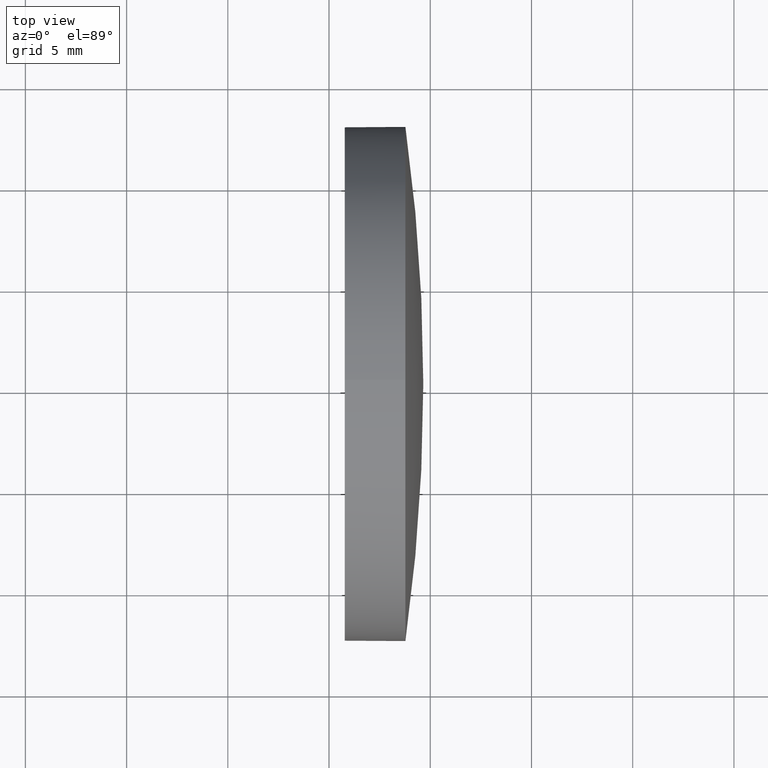
[diagram: clean part render]
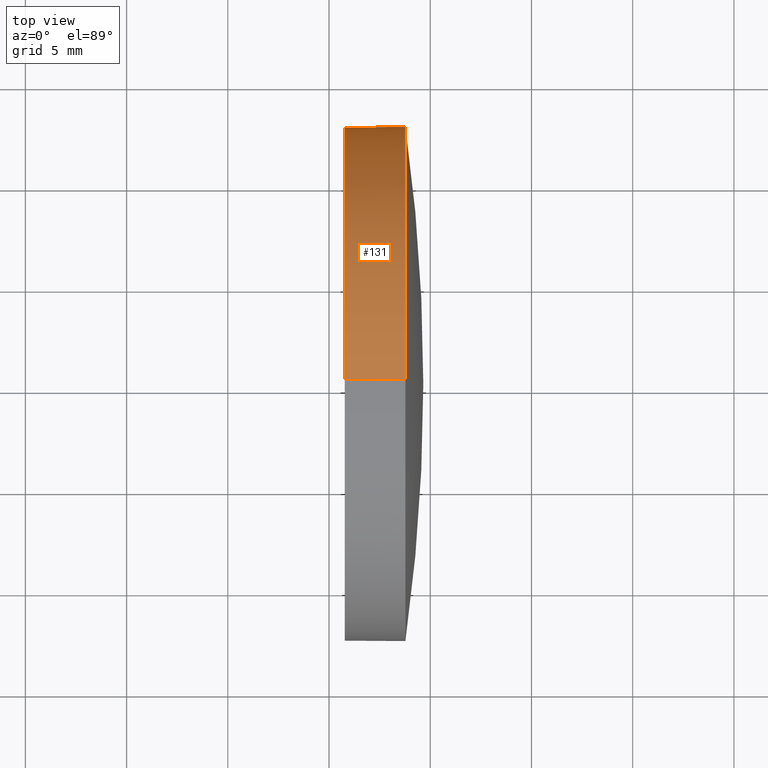
[diagram: same view with one face highlighted and labeled with its STEP entity id]
A machine part, top view. The second image highlights one B-rep face of the part: STEP entity #131.
In plain terms, the highlighted cylindrical surface (partial cylindrical patch) has radius 12.7 mm, axis along (-1, -0, -0).
Its self-contained STEP definition (entity closure, byte-faithful):
#4 = CARTESIAN_POINT ( 'NONE',  ( 118.7738765174393800, 65.23355492641219700, 0.0000000000000000000 ) ) ;
#5 = DIRECTION ( 'NONE',  ( -1.000000000000000000, -0.0000000000000000000, -0.0000000000000000000 ) ) ;
#6 = AXIS2_PLACEMENT_3D ( 'NONE', #106, #137, #122 ) ;
#14 = LINE ( 'NONE', #85, #147 ) ;
#15 = VERTEX_POINT ( 'NONE', #171 ) ;
#23 = VERTEX_POINT ( 'NONE', #135 ) ;
#31 = ORIENTED_EDGE ( 'NONE', *, *, #81, .F. ) ;
#33 = VERTEX_POINT ( 'NONE', #57 ) ;
#45 = VERTEX_POINT ( 'NONE', #73 ) ;
#46 = EDGE_CURVE ( 'NONE', #15, #152, #62, .T. ) ;
#57 = CARTESIAN_POINT ( 'NONE',  ( 118.7738765174393800, 65.23355492641219700, 12.70000000000000300 ) ) ;
#60 = CYLINDRICAL_SURFACE ( 'NONE', #96, 12.70000000000000300 ) ;
#61 = DIRECTION ( 'NONE',  ( -1.000000000000000000, -0.0000000000000000000, -0.0000000000000000000 ) ) ;
#62 = CIRCLE ( 'NONE', #165, 12.70000000000000300 ) ;
#64 = CARTESIAN_POINT ( 'NONE',  ( 118.7738765174393800, 65.23355492641219700, -12.70000000000000300 ) ) ;
#66 = CARTESIAN_POINT ( 'NONE',  ( 110.1653732284884500, 65.23355492641219700, 0.0000000000000000000 ) ) ;
#68 = ORIENTED_EDGE ( 'NONE', *, *, #46, .T. ) ;
#69 = ORIENTED_EDGE ( 'NONE', *, *, #130, .T. ) ;
#73 = CARTESIAN_POINT ( 'NONE',  ( 115.7736064308381300, 65.23355492641219700, -12.70000000000000300 ) ) ;
#79 = ORIENTED_EDGE ( 'NONE', *, *, #168, .F. ) ;
#80 = CIRCLE ( 'NONE', #6, 12.70000000000000300 ) ;
#81 = EDGE_CURVE ( 'NONE', #33, #23, #166, .T. ) ;
#85 = CARTESIAN_POINT ( 'NONE',  ( 110.1653732284884500, 65.23355492641219700, -12.70000000000000300 ) ) ;
#87 = VECTOR ( 'NONE', #156, 1000.000000000000000 ) ;
#91 = CARTESIAN_POINT ( 'NONE',  ( 118.7738765174393800, 65.23355492641219700, 0.0000000000000000000 ) ) ;
#93 = CARTESIAN_POINT ( 'NONE',  ( 110.1653732284884500, 65.23355492641219700, 12.70000000000000300 ) ) ;
#96 = AXIS2_PLACEMENT_3D ( 'NONE', #66, #160, #139 ) ;
#103 = CIRCLE ( 'NONE', #155, 12.70000000000000300 ) ;
#106 = CARTESIAN_POINT ( 'NONE',  ( 115.7736064308381300, 65.23355492641219700, 0.0000000000000000000 ) ) ;
#113 = EDGE_CURVE ( 'NONE', #152, #45, #14, .T. ) ;
#121 = DIRECTION ( 'NONE',  ( -1.000000000000000000, -0.0000000000000000000, -0.0000000000000000000 ) ) ;
#122 = DIRECTION ( 'NONE',  ( 0.0000000000000000000, 0.0000000000000000000, 1.000000000000000000 ) ) ;
#130 = EDGE_CURVE ( 'NONE', #33, #15, #103, .T. ) ;
#131 = ADVANCED_FACE ( 'NONE', ( #164 ), #60, .T. ) ;
#134 = EDGE_LOOP ( 'NONE', ( #68, #144, #79, #31, #69 ) ) ;
#135 = CARTESIAN_POINT ( 'NONE',  ( 115.7736064308381300, 65.23355492641219700, 12.70000000000000300 ) ) ;
#136 = DIRECTION ( 'NONE',  ( 0.0000000000000000000, 0.0000000000000000000, 1.000000000000000000 ) ) ;
#137 = DIRECTION ( 'NONE',  ( -1.000000000000000000, -0.0000000000000000000, -0.0000000000000000000 ) ) ;
#139 = DIRECTION ( 'NONE',  ( 0.0000000000000000000, 0.0000000000000000000, 1.000000000000000000 ) ) ;
#144 = ORIENTED_EDGE ( 'NONE', *, *, #113, .T. ) ;
#147 = VECTOR ( 'NONE', #121, 1000.000000000000000 ) ;
#152 = VERTEX_POINT ( 'NONE', #64 ) ;
#155 = AXIS2_PLACEMENT_3D ( 'NONE', #4, #5, #174 ) ;
#156 = DIRECTION ( 'NONE',  ( -1.000000000000000000, -0.0000000000000000000, -0.0000000000000000000 ) ) ;
#160 = DIRECTION ( 'NONE',  ( -1.000000000000000000, -0.0000000000000000000, -0.0000000000000000000 ) ) ;
#164 = FACE_OUTER_BOUND ( 'NONE', #134, .T. ) ;
#165 = AXIS2_PLACEMENT_3D ( 'NONE', #91, #61, #136 ) ;
#166 = LINE ( 'NONE', #93, #87 ) ;
#168 = EDGE_CURVE ( 'NONE', #23, #45, #80, .T. ) ;
#171 = CARTESIAN_POINT ( 'NONE',  ( 118.7738765174393800, 77.93355492641222800, 0.0000000000000000000 ) ) ;
#174 = DIRECTION ( 'NONE',  ( 0.0000000000000000000, 0.0000000000000000000, 1.000000000000000000 ) ) ;